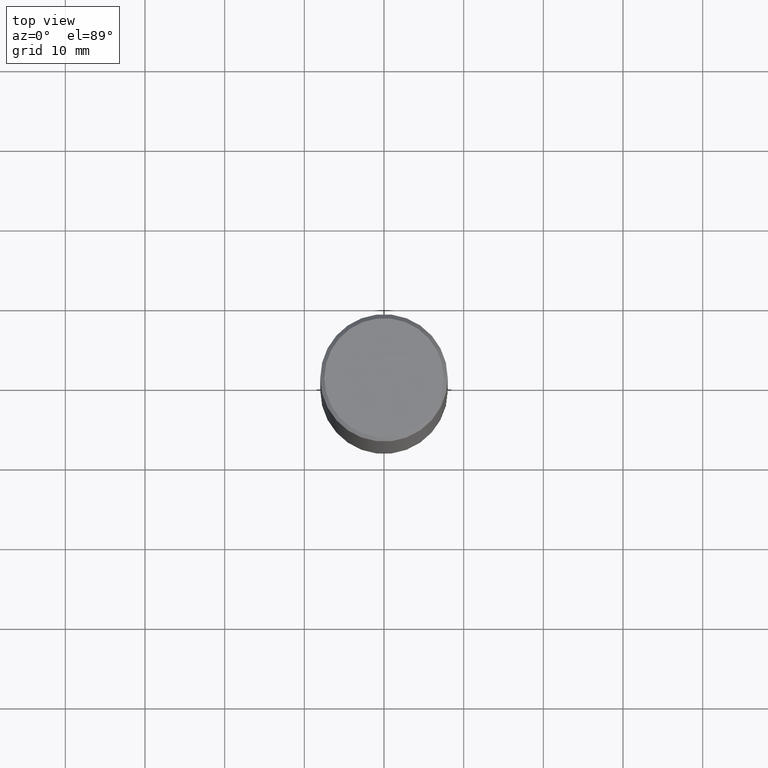
[diagram: clean part render]
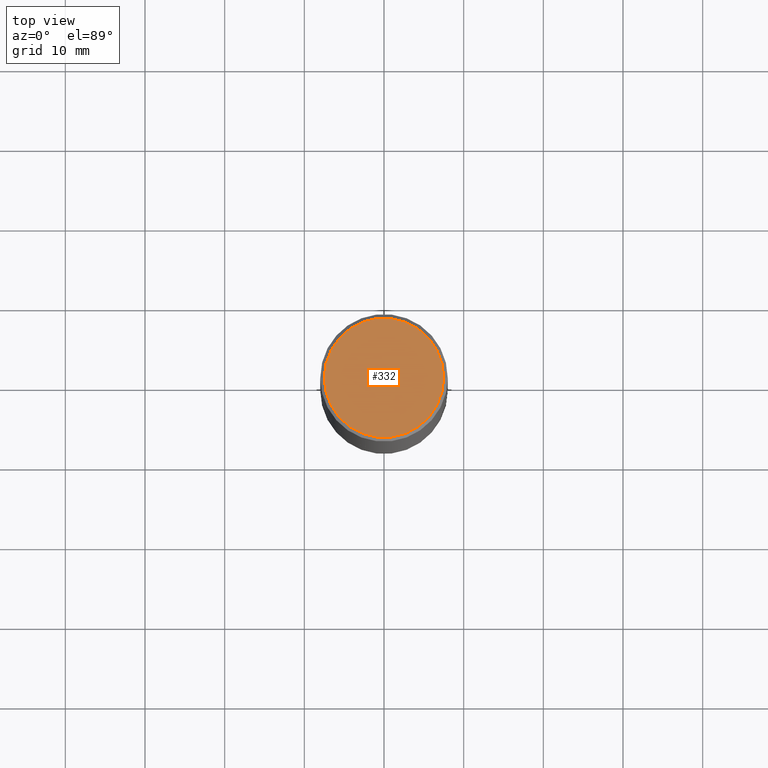
[diagram: same view with one face highlighted and labeled with its STEP entity id]
A machine part, top view. The second image highlights one B-rep face of the part: STEP entity #332.
In plain terms, the highlighted planar face has unit normal (0, -0, -1).
Its self-contained STEP definition (entity closure, byte-faithful):
#24 = ORIENTED_EDGE ( 'NONE', *, *, #80, .T. ) ;
#25 = CARTESIAN_POINT ( 'NONE',  ( 2.059624841783562091E-15, 0.2949499999999997124, -1.027678164646734579E-15 ) ) ;
#80 = EDGE_CURVE ( 'NONE', #226, #129, #357, .T. ) ;
#114 = CARTESIAN_POINT ( 'NONE',  ( -0.2949499999999997124, 2.094539655171993740E-15, 4.268512490085885145E-18 ) ) ;
#129 = VERTEX_POINT ( 'NONE', #349 ) ;
#130 = DIRECTION ( 'NONE',  ( 2.438088387897960049E-29, -3.491481338843145188E-15, -1.000000000000000000 ) ) ;
#142 = CARTESIAN_POINT ( 'NONE',  ( -1.043851414335219820E-46, 1.490343170380447200E-32, 4.268512490100411279E-18 ) ) ;
#146 = DIRECTION ( 'NONE',  ( 1.000000000000000000, -6.982962677686267499E-15, 4.876053491004739391E-29 ) ) ;
#178 = CIRCLE ( 'NONE', #269, 0.2949499999999997124 ) ;
#185 = EDGE_LOOP ( 'NONE', ( #24, #361 ) ) ;
#194 = EDGE_CURVE ( 'NONE', #129, #226, #178, .T. ) ;
#226 = VERTEX_POINT ( 'NONE', #114 ) ;
#236 = DIRECTION ( 'NONE',  ( -2.445468806185136597E-29, 3.491481338843145583E-15, 1.000000000000000000 ) ) ;
#244 = DIRECTION ( 'NONE',  ( -1.000000000000000000, 6.982962677686265922E-15, -4.876176775795935793E-29 ) ) ;
#261 = CARTESIAN_POINT ( 'NONE',  ( -1.043851414335219820E-46, 1.490343170380447200E-32, 4.268512490100411279E-18 ) ) ;
#263 = DIRECTION ( 'NONE',  ( -2.445468806185136597E-29, 3.491481338843145583E-15, 1.000000000000000000 ) ) ;
#269 = AXIS2_PLACEMENT_3D ( 'NONE', #261, #236, #146 ) ;
#272 = PLANE ( 'NONE',  #358 ) ;
#286 = DIRECTION ( 'NONE',  ( 1.000000000000000000, -6.982962677686267499E-15, 4.876053491004739391E-29 ) ) ;
#308 = AXIS2_PLACEMENT_3D ( 'NONE', #142, #263, #286 ) ;
#332 = ADVANCED_FACE ( 'NONE', ( #355 ), #272, .F. ) ;
#349 = CARTESIAN_POINT ( 'NONE',  ( 0.2949499999999997124, -2.127023677808858103E-15, 4.268512490115050658E-18 ) ) ;
#355 = FACE_OUTER_BOUND ( 'NONE', #185, .T. ) ;
#357 = CIRCLE ( 'NONE', #308, 0.2949499999999997124 ) ;
#358 = AXIS2_PLACEMENT_3D ( 'NONE', #25, #130, #244 ) ;
#361 = ORIENTED_EDGE ( 'NONE', *, *, #194, .T. ) ;